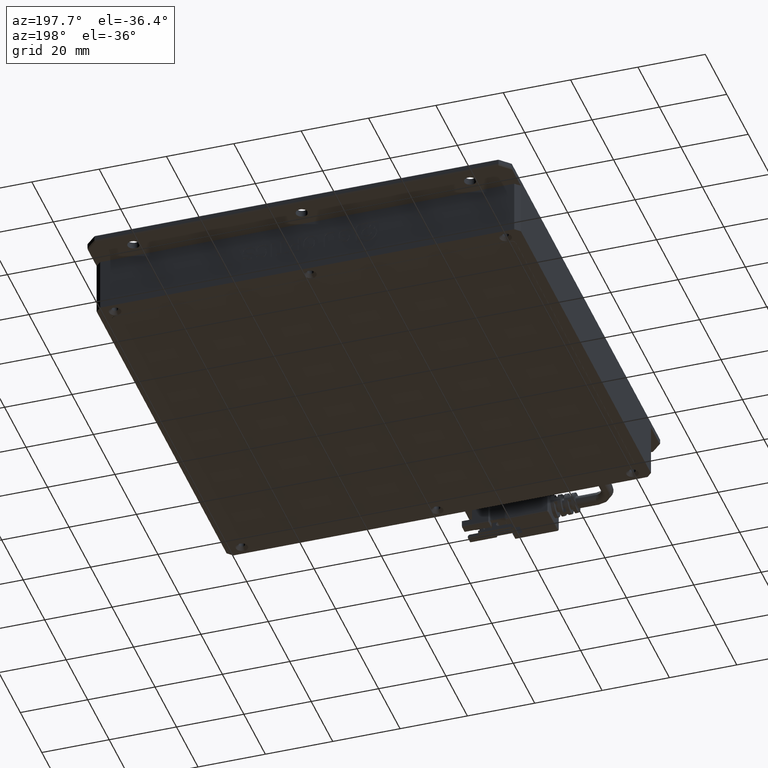
[diagram: clean part render]
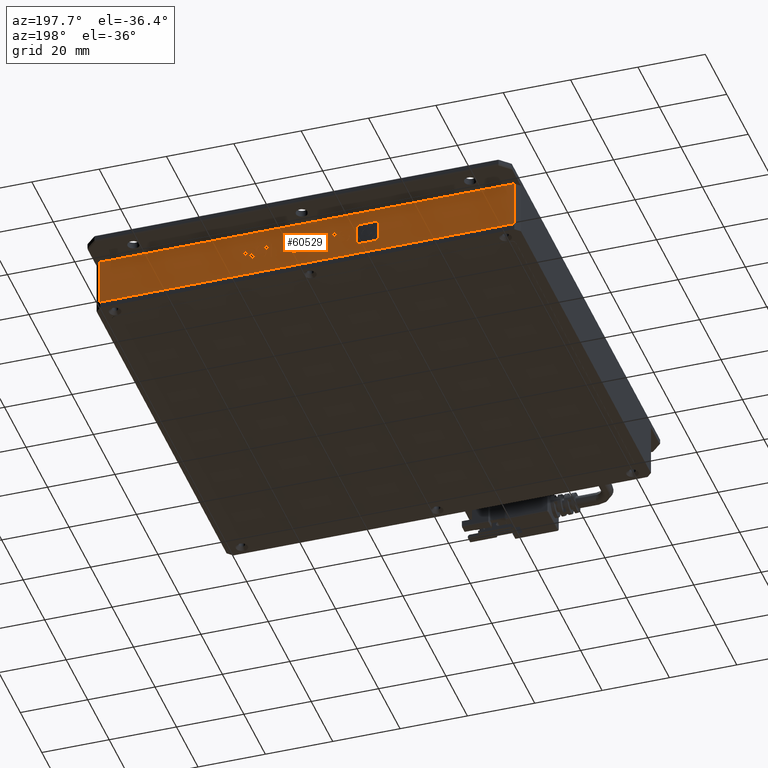
[diagram: same view with one face highlighted and labeled with its STEP entity id]
A machine part, auxiliary view. The second image highlights one B-rep face of the part: STEP entity #60529.
In plain terms, the highlighted planar face has unit normal (0, -1, 0).
Its self-contained STEP definition (entity closure, byte-faithful):
#88 = CARTESIAN_POINT ( 'NONE',  ( 18.69309010691133500, 72.88965253913710300, 7.000338398248152000 ) ) ;
#122 = CARTESIAN_POINT ( 'NONE',  ( 17.73626209176826100, 72.88965253913710300, 7.412067711390385200 ) ) ;
#165 = B_SPLINE_CURVE_WITH_KNOTS ( 'NONE', 3,
 ( #31137, #88, #62543, #15752 ),
 .UNSPECIFIED., .F., .F.,
 ( 4, 4 ),
 ( 11.00000000000000000, 12.00000000000000000 ),
 .UNSPECIFIED. ) ;
#205 = VECTOR ( 'NONE', #36909, 1000.000000000000000 ) ;
#334 = VERTEX_POINT ( 'NONE', #41814 ) ;
#351 = VERTEX_POINT ( 'NONE', #82115 ) ;
#378 = LINE ( 'NONE', #53893, #2815 ) ;
#618 = VERTEX_POINT ( 'NONE', #94172 ) ;
#738 = ORIENTED_EDGE ( 'NONE', *, *, #75271, .F. ) ;
#841 = CARTESIAN_POINT ( 'NONE',  ( -14.89432935719636800, 72.88965253913710300, 4.497999126214069500 ) ) ;
#1033 = DIRECTION ( 'NONE',  ( -0.0000000000000000000, -0.0000000000000000000, -1.000000000000000000 ) ) ;
#1045 = ORIENTED_EDGE ( 'NONE', *, *, #94362, .F. ) ;
#1071 = B_SPLINE_CURVE_WITH_KNOTS ( 'NONE', 3,
 ( #98365, #20088, #43610, #51467 ),
 .UNSPECIFIED., .F., .F.,
 ( 4, 4 ),
 ( 2.000000000000000000, 3.000000000000000000 ),
 .UNSPECIFIED. ) ;
#1423 = LINE ( 'NONE', #55606, #82008 ) ;
#1513 = B_SPLINE_CURVE_WITH_KNOTS ( 'NONE', 3,
 ( #14129, #99926, #29820, #84471 ),
 .UNSPECIFIED., .F., .F.,
 ( 4, 4 ),
 ( 1.000000000000000000, 2.000000000000000000 ),
 .UNSPECIFIED. ) ;
#1555 = CARTESIAN_POINT ( 'NONE',  ( -63.35509736540663500, 72.88965253913710300, 13.99999999998362900 ) ) ;
#1567 = CARTESIAN_POINT ( 'NONE',  ( 61.14490263459333600, 72.88965253913711700, 13.99999999998362900 ) ) ;
#1892 = DIRECTION ( 'NONE',  ( -0.0000000000000000000, -0.0000000000000000000, -1.000000000000000000 ) ) ;
#2307 = CARTESIAN_POINT ( 'NONE',  ( -11.72790772975695900, 72.88965253913710300, 5.032896537783021700 ) ) ;
#2652 = CARTESIAN_POINT ( 'NONE',  ( -13.06878117486243200, 72.88965253913710300, 4.474959815230272800 ) ) ;
#2711 = VECTOR ( 'NONE', #98153, 1000.000000000000000 ) ;
#2744 = CARTESIAN_POINT ( 'NONE',  ( 61.14490263459336500, 72.88965253913710300, 13.99999999998362900 ) ) ;
#2784 = DIRECTION ( 'NONE',  ( -0.0000000000000000000, -0.0000000000000000000, -1.000000000000000000 ) ) ;
#2815 = VECTOR ( 'NONE', #84644, 1000.000000000000000 ) ;
#2916 = EDGE_CURVE ( 'NONE', #80700, #34252, #79996, .T. ) ;
#3107 = CARTESIAN_POINT ( 'NONE',  ( 5.122754790524375300, 72.88965253913710300, 4.467780258713249400 ) ) ;
#3230 = DIRECTION ( 'NONE',  ( -1.000000000000000000, -0.0000000000000000000, -0.0000000000000000000 ) ) ;
#3281 = VECTOR ( 'NONE', #67214, 1000.000000000000000 ) ;
#3366 = CARTESIAN_POINT ( 'NONE',  ( 9.379258305938108700, 72.88965253913710300, 8.967780258713254700 ) ) ;
#3477 = CARTESIAN_POINT ( 'NONE',  ( -8.623297129432216900, 72.88965253913710300, 9.093361654062077200 ) ) ;
#3552 = CARTESIAN_POINT ( 'NONE',  ( 2.252392432492866800, 72.88965253913710300, 7.398012816852817000 ) ) ;
#3680 = DIRECTION ( 'NONE',  ( 1.000000000000000000, -0.0000000000000000000, -0.0000000000000000000 ) ) ;
#3765 = CARTESIAN_POINT ( 'NONE',  ( -20.38187477048314400, 72.88965253913710300, 9.985605835279159200 ) ) ;
#3778 = VERTEX_POINT ( 'NONE', #30247 ) ;
#3806 = LINE ( 'NONE', #64475, #24536 ) ;
#3976 = LINE ( 'NONE', #62403, #22293 ) ;
#4154 = VERTEX_POINT ( 'NONE', #30163 ) ;
#4227 = CARTESIAN_POINT ( 'NONE',  ( -15.31036921447137500, 72.88965253913710300, 3.274440234756731600 ) ) ;
#4358 = CARTESIAN_POINT ( 'NONE',  ( -6.358329579405519500, 72.88965253913710300, 4.467780258713249400 ) ) ;
#4624 = ORIENTED_EDGE ( 'NONE', *, *, #5790, .F. ) ;
#4835 = VECTOR ( 'NONE', #76499, 1000.000000000000000 ) ;
#4905 = EDGE_CURVE ( 'NONE', #14381, #31357, #45517, .T. ) ;
#5091 = B_SPLINE_CURVE_WITH_KNOTS ( 'NONE', 3,
 ( #69017, #22272, #76885, #30073 ),
 .UNSPECIFIED., .F., .F.,
 ( 4, 4 ),
 ( 9.000000000000000000, 10.00000000000000000 ),
 .UNSPECIFIED. ) ;
#5167 = LINE ( 'NONE', #43393, #2711 ) ;
#5179 = CARTESIAN_POINT ( 'NONE',  ( -7.315157594548704600, 72.88965253913710300, 8.444524444759792900 ) ) ;
#5235 = CARTESIAN_POINT ( 'NONE',  ( 15.27610795439660100, 72.88965253913710300, 5.639873281969077100 ) ) ;
#5319 = VERTEX_POINT ( 'NONE', #84035 ) ;
#5575 = EDGE_CURVE ( 'NONE', #22379, #351, #3806, .T. ) ;
#5634 = CARTESIAN_POINT ( 'NONE',  ( -9.209100266263314800, 72.88965253913710300, 4.467780258713249400 ) ) ;
#5789 = CARTESIAN_POINT ( 'NONE',  ( -7.315157594548704600, 72.88965253913710300, 8.444524444759792900 ) ) ;
#5790 = EDGE_CURVE ( 'NONE', #36419, #88972, #1071, .T. ) ;
#5878 = CARTESIAN_POINT ( 'NONE',  ( -10.69307809211494800, 72.88965253913710300, 7.753826770341143900 ) ) ;
#6089 = VERTEX_POINT ( 'NONE', #8433 ) ;
#6191 = CARTESIAN_POINT ( 'NONE',  ( -63.35509736540663500, 72.88965253913710300, 13.99999999998362900 ) ) ;
#6223 = CARTESIAN_POINT ( 'NONE',  ( -8.271863922293398700, 72.88965253913710300, 8.060904920692696200 ) ) ;
#6316 = CARTESIAN_POINT ( 'NONE',  ( 16.83808740274717100, 72.88965253913710300, 8.465454677317934400 ) ) ;
#6676 = CARTESIAN_POINT ( 'NONE',  ( 10.84376614801452200, 72.88965253913710300, 6.728245374992337000 ) ) ;
#6824 = EDGE_LOOP ( 'NONE', ( #97718, #83622, #64868, #738, #44778, #51194, #72088, #65663, #90976, #67000 ) ) ;
#6884 = ORIENTED_EDGE ( 'NONE', *, *, #44399, .T. ) ;
#7010 = CARTESIAN_POINT ( 'NONE',  ( 4.673606602314528400, 72.88965253913710300, 5.932896537783033600 ) ) ;
#7134 = CARTESIAN_POINT ( 'NONE',  ( -13.04918950368905200, 72.88965253913710300, 8.995585829291940200 ) ) ;
#7187 = VECTOR ( 'NONE', #67061, 1000.000000000000000 ) ;
#7398 = ORIENTED_EDGE ( 'NONE', *, *, #75901, .F. ) ;
#7415 = VECTOR ( 'NONE', #41956, 1000.000000000000000 ) ;
#7554 = B_SPLINE_CURVE_WITH_KNOTS ( 'NONE', 3,
 ( #59774, #12971, #20860, #75493 ),
 .UNSPECIFIED., .F., .F.,
 ( 4, 4 ),
 ( 13.00000000000000000, 14.00000000000000000 ),
 .UNSPECIFIED. ) ;
#7590 = CARTESIAN_POINT ( 'NONE',  ( 12.89395543952376300, 72.88965253913710300, 9.051501188945820800 ) ) ;
#7791 = ORIENTED_EDGE ( 'NONE', *, *, #40361, .F. ) ;
#7812 = CARTESIAN_POINT ( 'NONE',  ( -7.334627578323704700, 72.88965253913710300, 9.051501188945820800 ) ) ;
#7822 = ORIENTED_EDGE ( 'NONE', *, *, #66887, .F. ) ;
#8146 = VECTOR ( 'NONE', #2784, 1000.000000000000000 ) ;
#8433 = CARTESIAN_POINT ( 'NONE',  ( -8.271863922293398700, 72.88965253913710300, 7.293361654062080000 ) ) ;
#8456 = CARTESIAN_POINT ( 'NONE',  ( 11.57900141031864600, 72.88965253913710300, 4.488710491271419300 ) ) ;
#8677 = LINE ( 'NONE', #51032, #26969 ) ;
#8889 = B_SPLINE_CURVE_WITH_KNOTS ( 'NONE', 3,
 ( #30322, #84628, #7134, #61748 ),
 .UNSPECIFIED., .F., .F.,
 ( 4, 4 ),
 ( 11.00000000000000000, 12.00000000000000000 ),
 .UNSPECIFIED. ) ;
#9024 = CARTESIAN_POINT ( 'NONE',  ( 18.13320638598137100, 72.88965253913710300, 9.051501188945820800 ) ) ;
#9316 = VERTEX_POINT ( 'NONE', #48846 ) ;
#9324 = B_SPLINE_CURVE_WITH_KNOTS ( 'NONE', 3,
 ( #89913, #35218, #4227, #58813 ),
 .UNSPECIFIED., .F., .F.,
 ( 4, 4 ),
 ( 3.000000000000000000, 4.000000000000000000 ),
 .UNSPECIFIED. ) ;
#9355 = DIRECTION ( 'NONE',  ( 0.0000000000000000000, -0.0000000000000000000, -1.000000000000000000 ) ) ;
#9559 = DIRECTION ( 'NONE',  ( 1.000000000000000000, -0.0000000000000000000, 0.0000000000000000000 ) ) ;
#9565 = EDGE_CURVE ( 'NONE', #54380, #26229, #56406, .T. ) ;
#9631 = CARTESIAN_POINT ( 'NONE',  ( 17.73626209176826100, 72.88965253913710300, 7.774757002899285400 ) ) ;
#9658 = CARTESIAN_POINT ( 'NONE',  ( 12.85489378457505100, 72.88965253913710300, 4.404989561038852300 ) ) ;
#9693 = VERTEX_POINT ( 'NONE', #14299 ) ;
#9755 = VECTOR ( 'NONE', #17837, 1000.000000000000000 ) ;
#9891 = CARTESIAN_POINT ( 'NONE',  ( -12.84086067729650600, 72.88965253913710300, 7.802866791974505400 ) ) ;
#10016 = B_SPLINE_CURVE_WITH_KNOTS ( 'NONE', 3,
 ( #89453, #34773, #50506, #3765 ),
 .UNSPECIFIED., .F., .F.,
 ( 4, 4 ),
 ( 7.000000000000000000, 8.000000000000000000 ),
 .UNSPECIFIED. ) ;
#10076 = CARTESIAN_POINT ( 'NONE',  ( -9.209100266263314800, 72.88965253913710300, 7.063129095922521500 ) ) ;
#10490 = CARTESIAN_POINT ( 'NONE',  ( -9.814373386869190700, 72.88965253913710300, 8.046850026155100400 ) ) ;
#10524 = CARTESIAN_POINT ( 'NONE',  ( -9.814373386869190700, 72.88965253913710300, 6.372431421503926600 ) ) ;
#10811 = ORIENTED_EDGE ( 'NONE', *, *, #72609, .F. ) ;
#10848 = CARTESIAN_POINT ( 'NONE',  ( 11.82651357905850600, 72.88965253913710300, 7.830672362553165100 ) ) ;
#11223 = VERTEX_POINT ( 'NONE', #18742 ) ;
#11224 = CARTESIAN_POINT ( 'NONE',  ( -6.358329579405519500, 72.88965253913710300, 7.293361654062080000 ) ) ;
#11255 = CARTESIAN_POINT ( 'NONE',  ( -7.334627578323704700, 72.88965253913710300, 9.051501188945820800 ) ) ;
#11334 = DIRECTION ( 'NONE',  ( -0.0000000000000000000, -0.0000000000000000000, -1.000000000000000000 ) ) ;
#11375 = CARTESIAN_POINT ( 'NONE',  ( 15.17839297332601600, 72.88965253913710300, 7.418943049410931000 ) ) ;
#11726 = CARTESIAN_POINT ( 'NONE',  ( 7.446253979274786200, 72.88965253913710300, 8.967780258713254700 ) ) ;
#11999 = ORIENTED_EDGE ( 'NONE', *, *, #90998, .F. ) ;
#12097 = DIRECTION ( 'NONE',  ( -0.0000000000000000000, -0.0000000000000000000, 1.000000000000000000 ) ) ;
#12122 = CARTESIAN_POINT ( 'NONE',  ( 16.97474235136797900, 72.88965253913710300, 6.288710491271415600 ) ) ;
#12188 = ORIENTED_EDGE ( 'NONE', *, *, #95629, .F. ) ;
#12223 = VERTEX_POINT ( 'NONE', #24603 ) ;
#12294 = EDGE_CURVE ( 'NONE', #13003, #81382, #57737, .T. ) ;
#12296 = VERTEX_POINT ( 'NONE', #11224 ) ;
#12344 = CARTESIAN_POINT ( 'NONE',  ( 16.85767907392055100, 72.88965253913710300, 4.404989561038852300 ) ) ;
#12686 = CARTESIAN_POINT ( 'NONE',  ( 15.84231942005387400, 72.88965253913710300, 4.419044455576449000 ) ) ;
#12801 = CARTESIAN_POINT ( 'NONE',  ( 16.85767907392055100, 72.88965253913710300, 4.404989561038852300 ) ) ;
#12971 = CARTESIAN_POINT ( 'NONE',  ( 15.62084835461297100, 72.88965253913710300, 8.814089074289267200 ) ) ;
#13003 = VERTEX_POINT ( 'NONE', #12122 ) ;
#13020 = CARTESIAN_POINT ( 'NONE',  ( -1.340306323591500300, 72.88965253913710300, 4.404989561038852300 ) ) ;
#13273 = CARTESIAN_POINT ( 'NONE',  ( -15.31036921447137500, 72.88965253913710300, 9.985605835279159200 ) ) ;
#13485 = CARTESIAN_POINT ( 'NONE',  ( 15.17839297332601600, 72.88965253913710300, 8.214291886620234400 ) ) ;
#13780 = CARTESIAN_POINT ( 'NONE',  ( 17.72311985272023800, 72.88965253913710300, 8.235222119178375900 ) ) ;
#14129 = CARTESIAN_POINT ( 'NONE',  ( -20.38187477048314400, 72.88965253913710300, 3.274440234756731600 ) ) ;
#14299 = CARTESIAN_POINT ( 'NONE',  ( -1.340306323591500300, 72.88965253913710300, 9.051501188945820800 ) ) ;
#14359 = CARTESIAN_POINT ( 'NONE',  ( 1.334747759696774900, 72.88965253913710300, 4.467780258713249400 ) ) ;
#14381 = VERTEX_POINT ( 'NONE', #14359 ) ;
#14486 = CARTESIAN_POINT ( 'NONE',  ( 10.90874721886403400, 72.88965253913710300, 8.207416548599688600 ) ) ;
#14694 = B_SPLINE_CURVE_WITH_KNOTS ( 'NONE', 3,
 ( #72601, #17984, #57217, #10490 ),
 .UNSPECIFIED., .F., .F.,
 ( 4, 4 ),
 ( 10.00000000000000000, 11.00000000000000000 ),
 .UNSPECIFIED. ) ;
#14798 = EDGE_CURVE ( 'NONE', #12296, #88087, #58428, .T. ) ;
#15229 = ORIENTED_EDGE ( 'NONE', *, *, #55710, .F. ) ;
#15232 = CARTESIAN_POINT ( 'NONE',  ( -1.340306323591500300, 72.88965253913710300, 4.404989561038852300 ) ) ;
#15371 = VERTEX_POINT ( 'NONE', #12801 ) ;
#15480 = CARTESIAN_POINT ( 'NONE',  ( 3.150567121513958600, 72.88965253913710300, 7.398012816852817000 ) ) ;
#15595 = CARTESIAN_POINT ( 'NONE',  ( -14.89432935719636800, 72.88965253913710300, 8.762034712391203700 ) ) ;
#15649 = CARTESIAN_POINT ( 'NONE',  ( 4.673606602314528400, 72.88965253913710300, 5.932896537783033600 ) ) ;
#15656 = DIRECTION ( 'NONE',  ( -1.000000000000000000, -0.0000000000000000000, -0.0000000000000000000 ) ) ;
#15752 = CARTESIAN_POINT ( 'NONE',  ( 16.97474235136797900, 72.88965253913710300, 6.288710491271415600 ) ) ;
#16006 = EDGE_CURVE ( 'NONE', #76815, #62127, #90107, .T. ) ;
#16026 = ORIENTED_EDGE ( 'NONE', *, *, #42443, .F. ) ;
#16340 = EDGE_CURVE ( 'NONE', #74569, #69596, #17002, .T. ) ;
#16346 = CARTESIAN_POINT ( 'NONE',  ( 13.66825235677615600, 72.88965253913710300, 8.472634233834957800 ) ) ;
#16350 = CARTESIAN_POINT ( 'NONE',  ( 0.7489446228661211800, 72.88965253913710300, 6.749175607550478500 ) ) ;
#16486 = B_SPLINE_CURVE_WITH_KNOTS ( 'NONE', 3,
 ( #99841, #44758, #6223, #60845 ),
 .UNSPECIFIED., .F., .F.,
 ( 4, 4 ),
 ( 3.000000000000000000, 4.000000000000000000 ),
 .UNSPECIFIED. ) ;
#16589 = CARTESIAN_POINT ( 'NONE',  ( 16.87714905769577500, 72.88965253913710300, 5.053826770341163200 ) ) ;
#16661 = CARTESIAN_POINT ( 'NONE',  ( 12.91342542329854100, 72.88965253913710300, 5.053826770341163200 ) ) ;
#16784 = CARTESIAN_POINT ( 'NONE',  ( 11.80047247575966000, 72.88965253913710300, 6.770105840108620000 ) ) ;
#16876 = CARTESIAN_POINT ( 'NONE',  ( -10.83642584765831500, 72.88965253913710300, 8.228346781157803500 ) ) ;
#16901 = CARTESIAN_POINT ( 'NONE',  ( -3.429557270048899700, 72.88965253913710300, 6.749175607550478500 ) ) ;
#17002 = LINE ( 'NONE', #62789, #56074 ) ;
#17135 = CARTESIAN_POINT ( 'NONE',  ( 11.81337134001059200, 72.88965253913710300, 5.653928176506672900 ) ) ;
#17175 = B_SPLINE_CURVE_WITH_KNOTS ( 'NONE', 3,
 ( #17576, #64037, #25431, #80075 ),
 .UNSPECIFIED., .F., .F.,
 ( 4, 4 ),
 ( 2.000000000000000000, 3.000000000000000000 ),
 .UNSPECIFIED. ) ;
#17249 = CARTESIAN_POINT ( 'NONE',  ( 12.18427453092441000, 72.88965253913710300, 5.081936559416355700 ) ) ;
#17339 = ORIENTED_EDGE ( 'NONE', *, *, #62567, .F. ) ;
#17478 = CARTESIAN_POINT ( 'NONE',  ( -9.814373386869190700, 72.88965253913710300, 8.046850026155100400 ) ) ;
#17497 = EDGE_CURVE ( 'NONE', #74843, #334, #44296, .T. ) ;
#17576 = CARTESIAN_POINT ( 'NONE',  ( -12.87992233224510800, 72.88965253913710300, 6.728245374992337000 ) ) ;
#17726 = FACE_BOUND ( 'NONE', #40983, .T. ) ;
#17739 = CARTESIAN_POINT ( 'NONE',  ( 6.509017635305314200, 72.88965253913710300, 5.095687235457447200 ) ) ;
#17837 = DIRECTION ( 'NONE',  ( -0.0000000000000000000, -0.0000000000000000000, 1.000000000000000000 ) ) ;
#17984 = CARTESIAN_POINT ( 'NONE',  ( -10.69307809211494800, 72.88965253913710300, 9.051501188945820800 ) ) ;
#18340 = EDGE_LOOP ( 'NONE', ( #61914, #16026, #49402, #95134, #37058, #1045, #55558, #39792, #11999, #73382, #42341, #7791, #46142, #43457 ) ) ;
#18729 = VECTOR ( 'NONE', #81861, 1000.000000000000000 ) ;
#18742 = CARTESIAN_POINT ( 'NONE',  ( -11.72790772975695900, 72.88965253913710300, 4.404989561038852300 ) ) ;
#19100 = CARTESIAN_POINT ( 'NONE',  ( 1.334747759696774900, 72.88965253913710300, 8.967780258713254700 ) ) ;
#19458 = CARTESIAN_POINT ( 'NONE',  ( -3.364576199199831300, 72.88965253913710300, 8.200541210579114400 ) ) ;
#19504 = VERTEX_POINT ( 'NONE', #71742 ) ;
#19624 = EDGE_CURVE ( 'NONE', #23223, #84551, #70459, .T. ) ;
#19803 = ORIENTED_EDGE ( 'NONE', *, *, #71065, .F. ) ;
#20045 = EDGE_CURVE ( 'NONE', #28908, #77788, #47230, .T. ) ;
#20088 = CARTESIAN_POINT ( 'NONE',  ( -2.668037529648836800, 72.88965253913710300, 4.460904920692704500 ) ) ;
#20157 = CARTESIAN_POINT ( 'NONE',  ( -11.72790772975695900, 72.88965253913710300, 5.032896537783021700 ) ) ;
#20192 = CARTESIAN_POINT ( 'NONE',  ( -9.209100266263314800, 72.88965253913710300, 4.467780258713249400 ) ) ;
#20207 = FACE_BOUND ( 'NONE', #51919, .T. ) ;
#20214 = CARTESIAN_POINT ( 'NONE',  ( -11.94268598827474800, 72.88965253913710300, 7.000338398248152000 ) ) ;
#20253 = ORIENTED_EDGE ( 'NONE', *, *, #43064, .F. ) ;
#20305 = DIRECTION ( 'NONE',  ( -0.0000000000000000000, -0.0000000000000000000, -1.000000000000000000 ) ) ;
#20473 = CARTESIAN_POINT ( 'NONE',  ( 7.446253979274786200, 72.88965253913710300, 5.095687235457447200 ) ) ;
#20501 = CARTESIAN_POINT ( 'NONE',  ( 10.29702466613258200, 72.88965253913710300, 4.467780258713249400 ) ) ;
#20816 = CARTESIAN_POINT ( 'NONE',  ( 17.26764391978308300, 72.88965253913710300, 5.067881664878759900 ) ) ;
#20860 = CARTESIAN_POINT ( 'NONE',  ( 16.21967204309315800, 72.88965253913710300, 9.093361654062077200 ) ) ;
#20971 = ORIENTED_EDGE ( 'NONE', *, *, #57402, .F. ) ;
#21158 = CARTESIAN_POINT ( 'NONE',  ( -14.89432935719636800, 72.88965253913710300, 8.762034712391203700 ) ) ;
#21593 = LINE ( 'NONE', #3552, #42284 ) ;
#21784 = ORIENTED_EDGE ( 'NONE', *, *, #42208, .F. ) ;
#21895 = VECTOR ( 'NONE', #59383, 1000.000000000000000 ) ;
#22272 = CARTESIAN_POINT ( 'NONE',  ( 16.21967204309315800, 72.88965253913710300, 5.249378419881489700 ) ) ;
#22293 = VECTOR ( 'NONE', #70260, 1000.000000000000000 ) ;
#22326 = CARTESIAN_POINT ( 'NONE',  ( -12.87992233224510800, 72.88965253913710300, 6.728245374992337000 ) ) ;
#22376 = CARTESIAN_POINT ( 'NONE',  ( 11.59214364936689300, 72.88965253913710300, 8.981530934754344400 ) ) ;
#22379 = VERTEX_POINT ( 'NONE', #36046 ) ;
#22688 = EDGE_CURVE ( 'NONE', #59698, #79181, #59340, .T. ) ;
#22824 = EDGE_CURVE ( 'NONE', #77788, #14381, #33695, .T. ) ;
#22985 = VERTEX_POINT ( 'NONE', #22326 ) ;
#22989 = ORIENTED_EDGE ( 'NONE', *, *, #31543, .F. ) ;
#23048 = EDGE_CURVE ( 'NONE', #26229, #83577, #67870, .T. ) ;
#23223 = VERTEX_POINT ( 'NONE', #48540 ) ;
#23246 = B_SPLINE_CURVE_WITH_KNOTS ( 'NONE', 3,
 ( #57219, #2652, #72931, #26166 ),
 .UNSPECIFIED., .F., .F.,
 ( 4, 4 ),
 ( 12.00000000000000000, 13.00000000000000000 ),
 .UNSPECIFIED. ) ;
#23287 = CARTESIAN_POINT ( 'NONE',  ( 14.61218150766885400, 72.88965253913710300, 8.298012816852800500 ) ) ;
#23356 = EDGE_CURVE ( 'NONE', #64248, #15371, #44945, .T. ) ;
#23519 = CARTESIAN_POINT ( 'NONE',  ( -5.356112164586424000, 72.88965253913710300, 8.444524444759792900 ) ) ;
#23646 = VECTOR ( 'NONE', #25245, 1000.000000000000000 ) ;
#23800 = EDGE_CURVE ( 'NONE', #95129, #36902, #37074, .T. ) ;
#24026 = VERTEX_POINT ( 'NONE', #20501 ) ;
#24115 = VERTEX_POINT ( 'NONE', #52891 ) ;
#24374 = B_SPLINE_CURVE_WITH_KNOTS ( 'NONE', 3,
 ( #47428, #94293, #63166, #16350 ),
 .UNSPECIFIED., .F., .F.,
 ( 4, 4 ),
 ( 0.0000000000000000000, 1.000000000000000000 ),
 .UNSPECIFIED. ) ;
#24497 = VERTEX_POINT ( 'NONE', #3366 ) ;
#24536 = VECTOR ( 'NONE', #25552, 1000.000000000000000 ) ;
#24603 = CARTESIAN_POINT ( 'NONE',  ( -61.85509736540666400, 72.88965253913710300, -1.637058544279312900E-011 ) ) ;
#24719 = CARTESIAN_POINT ( 'NONE',  ( -11.15524683197433100, 72.88965253913710300, 8.458579339297333600 ) ) ;
#24765 = ORIENTED_EDGE ( 'NONE', *, *, #23356, .F. ) ;
#25011 = B_SPLINE_CURVE_WITH_KNOTS ( 'NONE', 3,
 ( #12344, #12686, #51981, #5235 ),
 .UNSPECIFIED., .F., .F.,
 ( 4, 4 ),
 ( 5.000000000000000000, 6.000000000000000000 ),
 .UNSPECIFIED. ) ;
#25245 = DIRECTION ( 'NONE',  ( -0.0000000000000000000, -0.0000000000000000000, -1.000000000000000000 ) ) ;
#25406 = LINE ( 'NONE', #80848, #85291 ) ;
#25431 = CARTESIAN_POINT ( 'NONE',  ( -12.45705862213109000, 72.88965253913710300, 5.102866791974469700 ) ) ;
#25552 = DIRECTION ( 'NONE',  ( -1.000000000000000000, -0.0000000000000000000, -0.0000000000000000000 ) ) ;
#25838 = CARTESIAN_POINT ( 'NONE',  ( -10.75160973083888500, 72.88965253913710300, 4.404989561038852300 ) ) ;
#26166 = CARTESIAN_POINT ( 'NONE',  ( -13.81715867621458000, 72.88965253913710300, 6.707315142434194600 ) ) ;
#26229 = VERTEX_POINT ( 'NONE', #36400 ) ;
#26335 = VECTOR ( 'NONE', #68245, 1000.000000000000000 ) ;
#26348 = B_SPLINE_CURVE_WITH_KNOTS ( 'NONE', 3,
 ( #50326, #97189, #58146, #11375 ),
 .UNSPECIFIED., .F., .F.,
 ( 4, 4 ),
 ( 1.000000000000000000, 2.000000000000000000 ),
 .UNSPECIFIED. ) ;
#26383 = CARTESIAN_POINT ( 'NONE',  ( 1.334747759696774900, 72.88965253913710300, 4.467780258713249400 ) ) ;
#26599 = DIRECTION ( 'NONE',  ( -0.0000000000000000000, -0.0000000000000000000, 1.000000000000000000 ) ) ;
#26647 = CARTESIAN_POINT ( 'NONE',  ( 18.41965852227134100, 72.88965253913710300, 4.900439804413625900 ) ) ;
#26969 = VECTOR ( 'NONE', #12097, 1000.000000000000000 ) ;
#26987 = CARTESIAN_POINT ( 'NONE',  ( 17.84675424969151100, 72.88965253913710300, 4.433099350114017200 ) ) ;
#27108 = DIRECTION ( 'NONE',  ( -0.0000000000000000000, -0.0000000000000000000, 1.000000000000000000 ) ) ;
#27236 = CARTESIAN_POINT ( 'NONE',  ( 6.509017635305314200, 72.88965253913710300, 8.967780258713254700 ) ) ;
#27239 = CARTESIAN_POINT ( 'NONE',  ( -11.94268598827474800, 72.88965253913710300, 7.000338398248152000 ) ) ;
#27345 = VERTEX_POINT ( 'NONE', #841 ) ;
#27614 = VERTEX_POINT ( 'NONE', #76563 ) ;
#27751 = ORIENTED_EDGE ( 'NONE', *, *, #4905, .F. ) ;
#27995 = CARTESIAN_POINT ( 'NONE',  ( -11.25928955777222400, 72.88965253913710300, 5.032896537783021700 ) ) ;
#27997 = EDGE_CURVE ( 'NONE', #42096, #76452, #90513, .T. ) ;
#28304 = CARTESIAN_POINT ( 'NONE',  ( -10.69307809211494800, 72.88965253913710300, 7.000338398248152000 ) ) ;
#28908 = VERTEX_POINT ( 'NONE', #7010 ) ;
#29041 = CARTESIAN_POINT ( 'NONE',  ( 13.66180292465069000, 72.88965253913710300, 5.333099350114029100 ) ) ;
#29183 = VECTOR ( 'NONE', #9559, 1000.000000000000000 ) ;
#29334 = CARTESIAN_POINT ( 'NONE',  ( 8.832516824055947100, 72.88965253913710300, 4.467780258713249400 ) ) ;
#29403 = VERTEX_POINT ( 'NONE', #48789 ) ;
#29820 = CARTESIAN_POINT ( 'NONE',  ( -21.60549478818052200, 72.88965253913710300, 3.935157632828784300 ) ) ;
#30026 = ORIENTED_EDGE ( 'NONE', *, *, #72673, .F. ) ;
#30073 = CARTESIAN_POINT ( 'NONE',  ( 16.87714905769577500, 72.88965253913710300, 5.053826770341163200 ) ) ;
#30163 = CARTESIAN_POINT ( 'NONE',  ( 16.83808740274717100, 72.88965253913710300, 8.465454677317934400 ) ) ;
#30247 = CARTESIAN_POINT ( 'NONE',  ( -11.66925440363486600, 72.88965253913710300, 9.051501188945820800 ) ) ;
#30289 = VERTEX_POINT ( 'NONE', #84136 ) ;
#30322 = CARTESIAN_POINT ( 'NONE',  ( -13.81715867621458000, 72.88965253913710300, 6.707315142434194600 ) ) ;
#30426 = LINE ( 'NONE', #90965, #71973 ) ;
#30953 = VECTOR ( 'NONE', #95022, 1000.000000000000000 ) ;
#31123 = ORIENTED_EDGE ( 'NONE', *, *, #42631, .F. ) ;
#31137 = CARTESIAN_POINT ( 'NONE',  ( 18.69309010691133500, 72.88965253913710300, 7.711966305224887500 ) ) ;
#31167 = CARTESIAN_POINT ( 'NONE',  ( 17.46940162665222500, 72.88965253913710300, 7.181835153250854200 ) ) ;
#31320 = EDGE_LOOP ( 'NONE', ( #22989, #55148, #21784, #7398, #53381, #32206, #64542, #48464, #82093, #99949 ) ) ;
#31357 = VERTEX_POINT ( 'NONE', #91490 ) ;
#31543 = EDGE_CURVE ( 'NONE', #79270, #53984, #40467, .T. ) ;
#31659 = VERTEX_POINT ( 'NONE', #48684 ) ;
#31681 = CARTESIAN_POINT ( 'NONE',  ( 4.686383779166525300, 72.88965253913710300, 4.956355164067504800 ) ) ;
#32054 = VECTOR ( 'NONE', #20305, 1000.000000000000000 ) ;
#32170 = EDGE_CURVE ( 'NONE', #100737, #72961, #51275, .T. ) ;
#32206 = ORIENTED_EDGE ( 'NONE', *, *, #91330, .F. ) ;
#32566 = CARTESIAN_POINT ( 'NONE',  ( 18.70586728376388700, 72.88965253913710300, 8.604786748707848400 ) ) ;
#32748 = ORIENTED_EDGE ( 'NONE', *, *, #27997, .F. ) ;
#32868 = CARTESIAN_POINT ( 'NONE',  ( 14.50144597494840100, 72.88965253913710300, 4.914494698951221700 ) ) ;
#33372 = LINE ( 'NONE', #55667, #30953 ) ;
#33407 = DIRECTION ( 'NONE',  ( 1.000000000000000000, -0.0000000000000000000, -0.0000000000000000000 ) ) ;
#33462 = EDGE_CURVE ( 'NONE', #76452, #83899, #8677, .T. ) ;
#33695 = LINE ( 'NONE', #26383, #96116 ) ;
#33780 = EDGE_CURVE ( 'NONE', #46032, #49531, #48829, .T. ) ;
#34189 = B_SPLINE_CURVE_WITH_KNOTS ( 'NONE', 3,
 ( #60116, #67960, #29041, #83676 ),
 .UNSPECIFIED., .F., .F.,
 ( 4, 4 ),
 ( 1.000000000000000000, 2.000000000000000000 ),
 .UNSPECIFIED. ) ;
#34252 = VERTEX_POINT ( 'NONE', #46079 ) ;
#34428 = CARTESIAN_POINT ( 'NONE',  ( 16.20652980404524600, 72.88965253913710300, 5.988811897436885800 ) ) ;
#34773 = CARTESIAN_POINT ( 'NONE',  ( -21.60549478818052200, 72.88965253913710300, 9.569627124645041500 ) ) ;
#35102 = CARTESIAN_POINT ( 'NONE',  ( -2.668037529648836800, 72.88965253913710300, 8.967780258713254700 ) ) ;
#35218 = CARTESIAN_POINT ( 'NONE',  ( -14.89432935719636800, 72.88965253913710300, 3.690235473937458500 ) ) ;
#35269 = CARTESIAN_POINT ( 'NONE',  ( 4.673606602314528400, 72.88965253913710300, 5.932896537783033600 ) ) ;
#35615 = LINE ( 'NONE', #72346, #53986 ) ;
#35733 = EDGE_CURVE ( 'NONE', #70175, #47032, #87887, .T. ) ;
#35749 = B_SPLINE_CURVE_WITH_KNOTS ( 'NONE', 3,
 ( #60252, #13780, #53075, #6316 ),
 .UNSPECIFIED., .F., .F.,
 ( 4, 4 ),
 ( 2.000000000000000000, 3.000000000000000000 ),
 .UNSPECIFIED. ) ;
#35811 = CARTESIAN_POINT ( 'NONE',  ( 15.18484240545126000, 72.88965253913710300, 6.393361654062096600 ) ) ;
#36044 = FACE_OUTER_BOUND ( 'NONE', #39994, .T. ) ;
#36046 = CARTESIAN_POINT ( 'NONE',  ( -16.11783929202426100, 72.88965253913710300, 3.274440234756731600 ) ) ;
#36119 = CARTESIAN_POINT ( 'NONE',  ( -10.69307809211494800, 72.88965253913710300, 7.753826770341143900 ) ) ;
#36231 = CARTESIAN_POINT ( 'NONE',  ( 0.6576790739210025500, 72.88965253913710300, 5.270308652439603700 ) ) ;
#36400 = CARTESIAN_POINT ( 'NONE',  ( 16.93580238381797900, 72.88965253913710300, 7.084059328480690500 ) ) ;
#36419 = VERTEX_POINT ( 'NONE', #15232 ) ;
#36902 = VERTEX_POINT ( 'NONE', #60551 ) ;
#36909 = DIRECTION ( 'NONE',  ( -0.0000000000000000000, -0.0000000000000000000, 1.000000000000000000 ) ) ;
#37058 = ORIENTED_EDGE ( 'NONE', *, *, #44909, .F. ) ;
#37074 = LINE ( 'NONE', #48410, #97033 ) ;
#37550 = LINE ( 'NONE', #28304, #76664 ) ;
#37680 = EDGE_CURVE ( 'NONE', #53984, #74843, #87867, .T. ) ;
#37905 = VERTEX_POINT ( 'NONE', #72810 ) ;
#38264 = B_SPLINE_CURVE_WITH_KNOTS ( 'NONE', 3,
 ( #7812, #85634, #23519, #78118 ),
 .UNSPECIFIED., .F., .F.,
 ( 4, 4 ),
 ( 8.000000000000000000, 9.000000000000000000 ),
 .UNSPECIFIED. ) ;
#38355 = LINE ( 'NONE', #69208, #77459 ) ;
#38418 = CARTESIAN_POINT ( 'NONE',  ( 9.379258305938108700, 72.88965253913710300, 4.467780258713249400 ) ) ;
#38514 = FACE_BOUND ( 'NONE', #88808, .T. ) ;
#39340 = LINE ( 'NONE', #5634, #80847 ) ;
#39369 = DIRECTION ( 'NONE',  ( 1.000000000000000000, -0.0000000000000000000, -0.0000000000000000000 ) ) ;
#39768 = ORIENTED_EDGE ( 'NONE', *, *, #22824, .F. ) ;
#39792 = ORIENTED_EDGE ( 'NONE', *, *, #94048, .F. ) ;
#39994 = EDGE_LOOP ( 'NONE', ( #57442, #49475, #6884, #76087 ) ) ;
#40025 = LINE ( 'NONE', #95186, #81572 ) ;
#40066 = B_SPLINE_CURVE_WITH_KNOTS ( 'NONE', 3,
 ( #64753, #56890, #25838, #80467 ),
 .UNSPECIFIED., .F., .F.,
 ( 4, 4 ),
 ( 13.00000000000000000, 14.00000000000000000 ),
 .UNSPECIFIED. ) ;
#40361 = EDGE_CURVE ( 'NONE', #97898, #74569, #42597, .T. ) ;
#40467 = B_SPLINE_CURVE_WITH_KNOTS ( 'NONE', 3,
 ( #63074, #8456, #55194, #70918 ),
 .UNSPECIFIED., .F., .F.,
 ( 4, 4 ),
 ( 8.000000000000000000, 9.000000000000000000 ),
 .UNSPECIFIED. ) ;
#40487 = CARTESIAN_POINT ( 'NONE',  ( 3.150567121513958600, 72.88965253913710300, 4.467780258713249400 ) ) ;
#40537 = VERTEX_POINT ( 'NONE', #100755 ) ;
#40684 = CARTESIAN_POINT ( 'NONE',  ( 14.70989648873932700, 72.88965253913710300, 5.891036072666722100 ) ) ;
#40917 = CARTESIAN_POINT ( 'NONE',  ( -11.64978441985975400, 72.88965253913710300, 8.444524444759792900 ) ) ;
#40975 = LINE ( 'NONE', #42541, #59327 ) ;
#40983 = EDGE_LOOP ( 'NONE', ( #81028, #44755, #47342, #12188, #95488, #27751, #39768 ) ) ;
#41814 = CARTESIAN_POINT ( 'NONE',  ( 14.61218150766885400, 72.88965253913710300, 8.298012816852800500 ) ) ;
#41956 = DIRECTION ( 'NONE',  ( -1.000000000000000000, -0.0000000000000000000, -0.0000000000000000000 ) ) ;
#42096 = VERTEX_POINT ( 'NONE', #29334 ) ;
#42208 = EDGE_CURVE ( 'NONE', #40537, #37905, #378, .T. ) ;
#42284 = VECTOR ( 'NONE', #11334, 1000.000000000000000 ) ;
#42291 = CARTESIAN_POINT ( 'NONE',  ( 16.97474235136797900, 72.88965253913710300, 6.288710491271415600 ) ) ;
#42341 = ORIENTED_EDGE ( 'NONE', *, *, #16340, .F. ) ;
#42443 = EDGE_CURVE ( 'NONE', #36902, #11223, #40066, .T. ) ;
#42455 = CARTESIAN_POINT ( 'NONE',  ( -9.209100266263314800, 72.88965253913710300, 7.063129095922521500 ) ) ;
#42541 = CARTESIAN_POINT ( 'NONE',  ( 10.29702466613258200, 72.88965253913710300, 8.967780258713254700 ) ) ;
#42597 = LINE ( 'NONE', #51183, #21895 ) ;
#42631 = EDGE_CURVE ( 'NONE', #9693, #56106, #24374, .T. ) ;
#42634 = DIRECTION ( 'NONE',  ( 1.000000000000000000, -0.0000000000000000000, -0.0000000000000000000 ) ) ;
#43064 = EDGE_CURVE ( 'NONE', #70766, #24026, #3976, .T. ) ;
#43393 = CARTESIAN_POINT ( 'NONE',  ( 15.17839297332601600, 72.88965253913710300, 8.214291886620234400 ) ) ;
#43457 = ORIENTED_EDGE ( 'NONE', *, *, #53302, .F. ) ;
#43610 = CARTESIAN_POINT ( 'NONE',  ( -3.364576199199831300, 72.88965253913710300, 5.242198863364411200 ) ) ;
#43882 = CARTESIAN_POINT ( 'NONE',  ( -10.81014136956237700, 72.88965253913710300, 5.723594212201643200 ) ) ;
#43897 = VERTEX_POINT ( 'NONE', #20214 ) ;
#43999 = CARTESIAN_POINT ( 'NONE',  ( 16.93580238381797900, 72.88965253913710300, 7.084059328480690500 ) ) ;
#44130 = DIRECTION ( 'NONE',  ( -1.000000000000000000, -0.0000000000000000000, -0.0000000000000000000 ) ) ;
#44296 = B_SPLINE_CURVE_WITH_KNOTS ( 'NONE', 3,
 ( #7590, #62210, #70055, #23287 ),
 .UNSPECIFIED., .F., .F.,
 ( 4, 4 ),
 ( 6.000000000000000000, 7.000000000000000000 ),
 .UNSPECIFIED. ) ;
#44399 = EDGE_CURVE ( 'NONE', #12223, #47032, #25406, .T. ) ;
#44755 = ORIENTED_EDGE ( 'NONE', *, *, #83164, .F. ) ;
#44758 = CARTESIAN_POINT ( 'NONE',  ( -7.953042937977605800, 72.88965253913710300, 8.444524444759792900 ) ) ;
#44778 = ORIENTED_EDGE ( 'NONE', *, *, #73002, .F. ) ;
#44909 = EDGE_CURVE ( 'NONE', #22985, #98696, #17175, .T. ) ;
#44945 = B_SPLINE_CURVE_WITH_KNOTS ( 'NONE', 3,
 ( #58027, #26647, #26987, #81630 ),
 .UNSPECIFIED., .F., .F.,
 ( 4, 4 ),
 ( 6.000000000000000000, 7.000000000000000000 ),
 .UNSPECIFIED. ) ;
#45238 = CARTESIAN_POINT ( 'NONE',  ( 18.69309010691133500, 72.88965253913710300, 7.711966305224887500 ) ) ;
#45336 = CARTESIAN_POINT ( 'NONE',  ( 12.85489378457505100, 72.88965253913710300, 4.404989561038852300 ) ) ;
#45443 = VERTEX_POINT ( 'NONE', #47468 ) ;
#45517 = LINE ( 'NONE', #19100, #87102 ) ;
#45598 = CARTESIAN_POINT ( 'NONE',  ( 12.89395543952376300, 72.88965253913710300, 9.051501188945820800 ) ) ;
#45637 = EDGE_CURVE ( 'NONE', #72961, #24115, #10016, .T. ) ;
#45681 = CARTESIAN_POINT ( 'NONE',  ( 16.23281428214140500, 72.88965253913710300, 5.639873281969077100 ) ) ;
#45726 = LINE ( 'NONE', #52215, #26335 ) ;
#45926 = ORIENTED_EDGE ( 'NONE', *, *, #62551, .F. ) ;
#46032 = VERTEX_POINT ( 'NONE', #93881 ) ;
#46079 = CARTESIAN_POINT ( 'NONE',  ( 12.91342542329854100, 72.88965253913710300, 5.053826770341163200 ) ) ;
#46142 = ORIENTED_EDGE ( 'NONE', *, *, #81702, .F. ) ;
#46356 = EDGE_LOOP ( 'NONE', ( #90367, #4624, #80856, #31123 ) ) ;
#46627 = DIRECTION ( 'NONE',  ( 1.000000000000000000, -0.0000000000000000000, -0.0000000000000000000 ) ) ;
#47032 = VERTEX_POINT ( 'NONE', #100885 ) ;
#47230 = B_SPLINE_CURVE_WITH_KNOTS ( 'NONE', 3,
 ( #15649, #31681, #78469, #86331 ),
 .UNSPECIFIED., .F., .F.,
 ( 4, 4 ),
 ( 5.000000000000000000, 6.000000000000000000 ),
 .UNSPECIFIED. ) ;
#47342 = ORIENTED_EDGE ( 'NONE', *, *, #33780, .F. ) ;
#47425 = CARTESIAN_POINT ( 'NONE',  ( 14.61218150766885400, 72.88965253913710300, 7.439873281969072500 ) ) ;
#47428 = CARTESIAN_POINT ( 'NONE',  ( -1.340306323591500300, 72.88965253913710300, 9.051501188945820800 ) ) ;
#47468 = CARTESIAN_POINT ( 'NONE',  ( 13.10873369804199700, 72.88965253913710300, 8.444524444759792900 ) ) ;
#47884 = EDGE_CURVE ( 'NONE', #79846, #5319, #7554, .T. ) ;
#48145 = EDGE_CURVE ( 'NONE', #51945, #42096, #1423, .T. ) ;
#48356 = AXIS2_PLACEMENT_3D ( 'NONE', #1555, #56115, #9355 ) ;
#48410 = CARTESIAN_POINT ( 'NONE',  ( -9.833965058042682700, 72.88965253913710300, 5.723594212201643200 ) ) ;
#48464 = ORIENTED_EDGE ( 'NONE', *, *, #85286, .F. ) ;
#48540 = CARTESIAN_POINT ( 'NONE',  ( -5.421093235435714400, 72.88965253913710300, 7.021268630806265100 ) ) ;
#48684 = CARTESIAN_POINT ( 'NONE',  ( -10.69307809211494800, 72.88965253913710300, 7.000338398248152000 ) ) ;
#48694 = LINE ( 'NONE', #59219, #7187 ) ;
#48789 = CARTESIAN_POINT ( 'NONE',  ( 61.14490263459335000, 72.88965253913710300, -1.637058544279312900E-011 ) ) ;
#48799 = CARTESIAN_POINT ( 'NONE',  ( -12.43077414403526100, 72.88965253913710300, 8.374858409064794200 ) ) ;
#48829 = LINE ( 'NONE', #15480, #69623 ) ;
#48846 = CARTESIAN_POINT ( 'NONE',  ( 7.446253979274786200, 72.88965253913710300, 5.095687235457447200 ) ) ;
#49224 = VECTOR ( 'NONE', #70146, 1000.000000000000000 ) ;
#49402 = ORIENTED_EDGE ( 'NONE', *, *, #23800, .F. ) ;
#49475 = ORIENTED_EDGE ( 'NONE', *, *, #70089, .F. ) ;
#49531 = VERTEX_POINT ( 'NONE', #60131 ) ;
#49560 = CARTESIAN_POINT ( 'NONE',  ( -11.94268598827474800, 72.88965253913710300, 6.372431421503926600 ) ) ;
#49750 = CARTESIAN_POINT ( 'NONE',  ( 12.26239784082172700, 72.88965253913710300, 8.388913303602391700 ) ) ;
#49917 = B_SPLINE_CURVE_WITH_KNOTS ( 'NONE', 3,
 ( #74049, #19458, #35102, #89790 ),
 .UNSPECIFIED., .F., .F.,
 ( 4, 4 ),
 ( 1.000000000000000000, 2.000000000000000000 ),
 .UNSPECIFIED. ) ;
#50169 = CARTESIAN_POINT ( 'NONE',  ( 16.23281428214140500, 72.88965253913710300, 5.639873281969077100 ) ) ;
#50241 = EDGE_CURVE ( 'NONE', #82913, #24497, #38355, .T. ) ;
#50326 = CARTESIAN_POINT ( 'NONE',  ( 16.83808740274717100, 72.88965253913710300, 8.465454677317934400 ) ) ;
#50506 = CARTESIAN_POINT ( 'NONE',  ( -21.18957724520442600, 72.88965253913710300, 9.985605835279159200 ) ) ;
#50659 = CARTESIAN_POINT ( 'NONE',  ( 3.150567121513958600, 72.88965253913710300, 7.398012816852817000 ) ) ;
#50746 = FACE_BOUND ( 'NONE', #31320, .T. ) ;
#50858 = ORIENTED_EDGE ( 'NONE', *, *, #12294, .F. ) ;
#51032 = CARTESIAN_POINT ( 'NONE',  ( 5.122754790524375300, 72.88965253913710300, 5.095687235457447200 ) ) ;
#51173 = CARTESIAN_POINT ( 'NONE',  ( -16.11783929202426100, 72.88965253913710300, 9.985605835279159200 ) ) ;
#51183 = CARTESIAN_POINT ( 'NONE',  ( -9.814373386869190700, 72.88965253913710300, 6.372431421503926600 ) ) ;
#51194 = ORIENTED_EDGE ( 'NONE', *, *, #59170, .F. ) ;
#51275 = LINE ( 'NONE', #87866, #9755 ) ;
#51467 = CARTESIAN_POINT ( 'NONE',  ( -3.429557270048899700, 72.88965253913710300, 6.749175607550478500 ) ) ;
#51530 = CARTESIAN_POINT ( 'NONE',  ( -10.81014136956237700, 72.88965253913710300, 5.723594212201643200 ) ) ;
#51772 = LINE ( 'NONE', #1567, #72520 ) ;
#51919 = EDGE_LOOP ( 'NONE', ( #15229, #61459, #97883, #57021, #20971, #97470, #101440, #30026, #24765, #60984, #45926, #74644, #50858, #7822 ) ) ;
#51945 = VERTEX_POINT ( 'NONE', #66443 ) ;
#51967 = CARTESIAN_POINT ( 'NONE',  ( 0.7489446228661211800, 72.88965253913710300, 6.749175607550478500 ) ) ;
#51981 = CARTESIAN_POINT ( 'NONE',  ( 15.31516960934531500, 72.88965253913710300, 4.830773768718682200 ) ) ;
#52065 = ORIENTED_EDGE ( 'NONE', *, *, #32170, .F. ) ;
#52215 = CARTESIAN_POINT ( 'NONE',  ( 14.61218150766885400, 72.88965253913710300, 7.439873281969072500 ) ) ;
#52233 = CARTESIAN_POINT ( 'NONE',  ( 17.67773045304466000, 72.88965253913710300, 5.807315142434182700 ) ) ;
#52549 = CARTESIAN_POINT ( 'NONE',  ( -6.651231147820624300, 72.88965253913710300, 8.472634233834957800 ) ) ;
#52891 = CARTESIAN_POINT ( 'NONE',  ( -20.38187477048314400, 72.88965253913710300, 9.985605835279159200 ) ) ;
#53075 = CARTESIAN_POINT ( 'NONE',  ( 17.42389053957782600, 72.88965253913710300, 8.465454677317934400 ) ) ;
#53302 = EDGE_CURVE ( 'NONE', #30289, #3778, #8889, .T. ) ;
#53381 = ORIENTED_EDGE ( 'NONE', *, *, #2916, .F. ) ;
#53784 = CARTESIAN_POINT ( 'NONE',  ( -21.60549478818052200, 72.88965253913710300, 4.742688887931223000 ) ) ;
#53893 = CARTESIAN_POINT ( 'NONE',  ( 14.70989648873932700, 72.88965253913710300, 5.891036072666722100 ) ) ;
#53922 = LINE ( 'NONE', #42455, #93063 ) ;
#53984 = VERTEX_POINT ( 'NONE', #64323 ) ;
#53986 = VECTOR ( 'NONE', #33407, 1000.000000000000000 ) ;
#54293 = LINE ( 'NONE', #11726, #95887 ) ;
#54367 = CARTESIAN_POINT ( 'NONE',  ( 15.27610795439660100, 72.88965253913710300, 5.639873281969077100 ) ) ;
#54380 = VERTEX_POINT ( 'NONE', #54367 ) ;
#54643 = B_SPLINE_CURVE_WITH_KNOTS ( 'NONE', 3,
 ( #40917, #48799, #9891, #64488 ),
 .UNSPECIFIED., .F., .F.,
 ( 4, 4 ),
 ( 3.000000000000000000, 4.000000000000000000 ),
 .UNSPECIFIED. ) ;
#54724 = CARTESIAN_POINT ( 'NONE',  ( 17.73626209176826100, 72.88965253913710300, 7.774757002899285400 ) ) ;
#55093 = CARTESIAN_POINT ( 'NONE',  ( 6.509017635305314200, 72.88965253913710300, 8.967780258713254700 ) ) ;
#55148 = ORIENTED_EDGE ( 'NONE', *, *, #89488, .F. ) ;
#55194 = CARTESIAN_POINT ( 'NONE',  ( 10.90874721886403400, 72.88965253913710300, 5.263129095922552700 ) ) ;
#55331 = CARTESIAN_POINT ( 'NONE',  ( -21.60549478818052200, 72.88965253913710300, 8.762034712391203700 ) ) ;
#55558 = ORIENTED_EDGE ( 'NONE', *, *, #22688, .F. ) ;
#55606 = CARTESIAN_POINT ( 'NONE',  ( 8.832516824055947100, 72.88965253913710300, 4.467780258713249400 ) ) ;
#55667 = CARTESIAN_POINT ( 'NONE',  ( 2.252392432492866800, 72.88965253913710300, 8.967780258713254700 ) ) ;
#55710 = EDGE_CURVE ( 'NONE', #5319, #73851, #85382, .T. ) ;
#56074 = VECTOR ( 'NONE', #15656, 1000.000000000000000 ) ;
#56106 = VERTEX_POINT ( 'NONE', #98850 ) ;
#56110 = EDGE_CURVE ( 'NONE', #56106, #36419, #94648, .T. ) ;
#56115 = DIRECTION ( 'NONE',  ( 0.0000000000000000000, -1.000000000000000000, 0.0000000000000000000 ) ) ;
#56295 = CARTESIAN_POINT ( 'NONE',  ( -63.35509736540663500, 72.88965253913710300, -1.637058544279312900E-011 ) ) ;
#56389 = CARTESIAN_POINT ( 'NONE',  ( 13.88303061529461100, 72.88965253913710300, 4.419044455576449000 ) ) ;
#56406 = B_SPLINE_CURVE_WITH_KNOTS ( 'NONE', 3,
 ( #90837, #35811, #82952, #43999 ),
 .UNSPECIFIED., .F., .F.,
 ( 4, 4 ),
 ( 4.000000000000000000, 5.000000000000000000 ),
 .UNSPECIFIED. ) ;
#56799 = FACE_BOUND ( 'NONE', #18340, .T. ) ;
#56802 = VERTEX_POINT ( 'NONE', #99394 ) ;
#56890 = CARTESIAN_POINT ( 'NONE',  ( -10.12041719433243300, 72.88965253913710300, 4.844524444759745300 ) ) ;
#57021 = ORIENTED_EDGE ( 'NONE', *, *, #83075, .F. ) ;
#57168 = CARTESIAN_POINT ( 'NONE',  ( 10.29702466613258200, 72.88965253913710300, 8.967780258713254700 ) ) ;
#57217 = CARTESIAN_POINT ( 'NONE',  ( -10.07490610725847400, 72.88965253913710300, 8.716617468015581200 ) ) ;
#57219 = CARTESIAN_POINT ( 'NONE',  ( -11.72790772975695900, 72.88965253913710300, 4.404989561038852300 ) ) ;
#57298 = CARTESIAN_POINT ( 'NONE',  ( 14.61218150766885400, 72.88965253913710300, 7.439873281969072500 ) ) ;
#57402 = EDGE_CURVE ( 'NONE', #83577, #4154, #35749, .T. ) ;
#57442 = ORIENTED_EDGE ( 'NONE', *, *, #91827, .T. ) ;
#57737 = B_SPLINE_CURVE_WITH_KNOTS ( 'NONE', 3,
 ( #42291, #89125, #34428, #50169 ),
 .UNSPECIFIED., .F., .F.,
 ( 4, 4 ),
 ( 10.00000000000000000, 11.00000000000000000 ),
 .UNSPECIFIED. ) ;
#58027 = CARTESIAN_POINT ( 'NONE',  ( 18.57590514206575000, 72.88965253913710300, 5.807315142434182700 ) ) ;
#58146 = CARTESIAN_POINT ( 'NONE',  ( 15.65991000956168500, 72.88965253913710300, 8.102765385809007600 ) ) ;
#58161 = VERTEX_POINT ( 'NONE', #17739 ) ;
#58323 = EDGE_CURVE ( 'NONE', #56802, #9316, #83896, .T. ) ;
#58428 = B_SPLINE_CURVE_WITH_KNOTS ( 'NONE', 3,
 ( #83634, #99096, #52549, #5789 ),
 .UNSPECIFIED., .F., .F.,
 ( 4, 4 ),
 ( 4.000000000000000000, 5.000000000000000000 ),
 .UNSPECIFIED. ) ;
#58506 = CARTESIAN_POINT ( 'NONE',  ( 4.191846191281323200, 72.88965253913710300, 7.426122605927954400 ) ) ;
#58813 = CARTESIAN_POINT ( 'NONE',  ( -16.11783929202426100, 72.88965253913710300, 3.274440234756731600 ) ) ;
#59170 = EDGE_CURVE ( 'NONE', #88087, #6089, #16486, .T. ) ;
#59219 = CARTESIAN_POINT ( 'NONE',  ( -6.358329579405519500, 72.88965253913710300, 7.293361654062080000 ) ) ;
#59280 = FACE_BOUND ( 'NONE', #85497, .T. ) ;
#59327 = VECTOR ( 'NONE', #3680, 1000.000000000000000 ) ;
#59340 = B_SPLINE_CURVE_WITH_KNOTS ( 'NONE', 3,
 ( #71508, #16876, #24719, #79350 ),
 .UNSPECIFIED., .F., .F.,
 ( 4, 4 ),
 ( 4.000000000000000000, 5.000000000000000000 ),
 .UNSPECIFIED. ) ;
#59383 = DIRECTION ( 'NONE',  ( -0.0000000000000000000, -0.0000000000000000000, -1.000000000000000000 ) ) ;
#59698 = VERTEX_POINT ( 'NONE', #36119 ) ;
#59774 = CARTESIAN_POINT ( 'NONE',  ( 15.17839297332601600, 72.88965253913710300, 8.214291886620234400 ) ) ;
#59818 = CARTESIAN_POINT ( 'NONE',  ( -0.03873790823183398400, 72.88965253913710300, 4.488710491271419300 ) ) ;
#60069 = CARTESIAN_POINT ( 'NONE',  ( -14.89432935719636800, 72.88965253913710300, 9.569627124645041500 ) ) ;
#60116 = CARTESIAN_POINT ( 'NONE',  ( 12.91342542329854100, 72.88965253913710300, 5.053826770341163200 ) ) ;
#60131 = CARTESIAN_POINT ( 'NONE',  ( 3.150567121513958600, 72.88965253913710300, 7.398012816852817000 ) ) ;
#60252 = CARTESIAN_POINT ( 'NONE',  ( 17.73626209176826100, 72.88965253913710300, 7.774757002899285400 ) ) ;
#60420 = EDGE_CURVE ( 'NONE', #24026, #82913, #70380, .T. ) ;
#60484 = EDGE_LOOP ( 'NONE', ( #86543, #20253, #60512, #86921 ) ) ;
#60512 = ORIENTED_EDGE ( 'NONE', *, *, #100470, .F. ) ;
#60529 = ADVANCED_FACE ( 'NONE', ( #80053, #50746, #20207, #59280, #38514, #17726, #98480, #77607, #56799, #36044 ), #71505, .F. ) ;
#60551 = CARTESIAN_POINT ( 'NONE',  ( -9.833965058042682700, 72.88965253913710300, 5.723594212201643200 ) ) ;
#60845 = CARTESIAN_POINT ( 'NONE',  ( -8.271863922293398700, 72.88965253913710300, 7.293361654062080000 ) ) ;
#60984 = ORIENTED_EDGE ( 'NONE', *, *, #85120, .F. ) ;
#61459 = ORIENTED_EDGE ( 'NONE', *, *, #47884, .F. ) ;
#61748 = CARTESIAN_POINT ( 'NONE',  ( -11.66925440363486600, 72.88965253913710300, 9.051501188945820800 ) ) ;
#61914 = ORIENTED_EDGE ( 'NONE', *, *, #87378, .F. ) ;
#62127 = VERTEX_POINT ( 'NONE', #77572 ) ;
#62210 = CARTESIAN_POINT ( 'NONE',  ( 13.66180292465069000, 72.88965253913710300, 9.051501188945820800 ) ) ;
#62403 = CARTESIAN_POINT ( 'NONE',  ( 10.29702466613258200, 72.88965253913710300, 4.467780258713249400 ) ) ;
#62543 = CARTESIAN_POINT ( 'NONE',  ( 18.12006414693301100, 72.88965253913710300, 6.526122605927970000 ) ) ;
#62551 = EDGE_CURVE ( 'NONE', #94922, #27614, #62976, .T. ) ;
#62567 = EDGE_CURVE ( 'NONE', #77423, #97183, #70816, .T. ) ;
#62789 = CARTESIAN_POINT ( 'NONE',  ( -11.94268598827474800, 72.88965253913710300, 6.372431421503926600 ) ) ;
#62976 = B_SPLINE_CURVE_WITH_KNOTS ( 'NONE', 3,
 ( #75455, #20816, #99100, #52233 ),
 .UNSPECIFIED., .F., .F.,
 ( 4, 4 ),
 ( 8.000000000000000000, 9.000000000000000000 ),
 .UNSPECIFIED. ) ;
#63074 = CARTESIAN_POINT ( 'NONE',  ( 12.85489378457505100, 72.88965253913710300, 4.404989561038852300 ) ) ;
#63166 = CARTESIAN_POINT ( 'NONE',  ( 0.6835984898212466000, 72.88965253913710300, 8.200541210579114400 ) ) ;
#63652 = CARTESIAN_POINT ( 'NONE',  ( 16.97474235136797900, 72.88965253913710300, 9.051501188945820800 ) ) ;
#63691 = CARTESIAN_POINT ( 'NONE',  ( 9.379258305938108700, 72.88965253913710300, 4.467780258713249400 ) ) ;
#64037 = CARTESIAN_POINT ( 'NONE',  ( -12.84086067729650600, 72.88965253913710300, 5.667983071044241200 ) ) ;
#64248 = VERTEX_POINT ( 'NONE', #75727 ) ;
#64323 = CARTESIAN_POINT ( 'NONE',  ( 10.84376614801452200, 72.88965253913710300, 6.728245374992337000 ) ) ;
#64475 = CARTESIAN_POINT ( 'NONE',  ( -20.38187477048314400, 72.88965253913710300, 3.274440234756731600 ) ) ;
#64488 = CARTESIAN_POINT ( 'NONE',  ( -12.87992233224510800, 72.88965253913710300, 6.728245374992337000 ) ) ;
#64542 = ORIENTED_EDGE ( 'NONE', *, *, #88285, .F. ) ;
#64753 = CARTESIAN_POINT ( 'NONE',  ( -9.833965058042682700, 72.88965253913710300, 5.723594212201643200 ) ) ;
#64769 = EDGE_CURVE ( 'NONE', #97183, #27345, #91972, .T. ) ;
#64868 = ORIENTED_EDGE ( 'NONE', *, *, #83085, .F. ) ;
#65090 = ORIENTED_EDGE ( 'NONE', *, *, #89126, .F. ) ;
#65448 = CARTESIAN_POINT ( 'NONE',  ( 11.80047247575966000, 72.88965253913710300, 6.770105840108620000 ) ) ;
#65506 = VERTEX_POINT ( 'NONE', #84680 ) ;
#65663 = ORIENTED_EDGE ( 'NONE', *, *, #97613, .F. ) ;
#66167 = EDGE_CURVE ( 'NONE', #9316, #51945, #40025, .T. ) ;
#66358 = DIRECTION ( 'NONE',  ( 1.000000000000000000, -0.0000000000000000000, -0.0000000000000000000 ) ) ;
#66443 = CARTESIAN_POINT ( 'NONE',  ( 8.832516824055947100, 72.88965253913710300, 5.095687235457447200 ) ) ;
#66887 = EDGE_CURVE ( 'NONE', #73851, #13003, #165, .T. ) ;
#67000 = ORIENTED_EDGE ( 'NONE', *, *, #19624, .F. ) ;
#67049 = CARTESIAN_POINT ( 'NONE',  ( -14.89432935719636800, 72.88965253913710300, 4.497999126214069500 ) ) ;
#67061 = DIRECTION ( 'NONE',  ( -0.0000000000000000000, -0.0000000000000000000, 1.000000000000000000 ) ) ;
#67214 = DIRECTION ( 'NONE',  ( -0.0000000000000000000, -0.0000000000000000000, -1.000000000000000000 ) ) ;
#67832 = ORIENTED_EDGE ( 'NONE', *, *, #33462, .F. ) ;
#67870 = B_SPLINE_CURVE_WITH_KNOTS ( 'NONE', 3,
 ( #85791, #31167, #122, #54724 ),
 .UNSPECIFIED., .F., .F.,
 ( 4, 4 ),
 ( 3.000000000000000000, 4.000000000000000000 ),
 .UNSPECIFIED. ) ;
#67905 = EDGE_CURVE ( 'NONE', #83899, #58161, #79509, .T. ) ;
#67910 = VECTOR ( 'NONE', #69842, 1000.000000000000000 ) ;
#67960 = CARTESIAN_POINT ( 'NONE',  ( 13.36902304363396600, 72.88965253913710300, 5.053826770341163200 ) ) ;
#68091 = DIRECTION ( 'NONE',  ( -1.000000000000000000, -0.0000000000000000000, -0.0000000000000000000 ) ) ;
#68245 = DIRECTION ( 'NONE',  ( -0.0000000000000000000, -0.0000000000000000000, -1.000000000000000000 ) ) ;
#68341 = EDGE_CURVE ( 'NONE', #84551, #100509, #30426, .T. ) ;
#68624 = CARTESIAN_POINT ( 'NONE',  ( 5.122754790524375300, 72.88965253913710300, 5.095687235457447200 ) ) ;
#69017 = CARTESIAN_POINT ( 'NONE',  ( 16.23281428214140500, 72.88965253913710300, 5.639873281969077100 ) ) ;
#69208 = CARTESIAN_POINT ( 'NONE',  ( 9.379258305938108700, 72.88965253913710300, 8.967780258713254700 ) ) ;
#69581 = ORIENTED_EDGE ( 'NONE', *, *, #45637, .F. ) ;
#69596 = VERTEX_POINT ( 'NONE', #49560 ) ;
#69623 = VECTOR ( 'NONE', #39369, 1000.000000000000000 ) ;
#69842 = DIRECTION ( 'NONE',  ( -1.000000000000000000, -0.0000000000000000000, -0.0000000000000000000 ) ) ;
#70055 = CARTESIAN_POINT ( 'NONE',  ( 14.23446382243320800, 72.88965253913710300, 8.800338398248118900 ) ) ;
#70089 = EDGE_CURVE ( 'NONE', #12223, #29403, #89065, .T. ) ;
#70146 = DIRECTION ( 'NONE',  ( -0.0000000000000000000, -0.0000000000000000000, 1.000000000000000000 ) ) ;
#70175 = VERTEX_POINT ( 'NONE', #2744 ) ;
#70260 = DIRECTION ( 'NONE',  ( -0.0000000000000000000, -0.0000000000000000000, -1.000000000000000000 ) ) ;
#70369 = B_SPLINE_CURVE_WITH_KNOTS ( 'NONE', 3,
 ( #20157, #27995, #98417, #51530 ),
 .UNSPECIFIED., .F., .F.,
 ( 4, 4 ),
 ( 1.000000000000000000, 2.000000000000000000 ),
 .UNSPECIFIED. ) ;
#70380 = LINE ( 'NONE', #38418, #67910 ) ;
#70459 = LINE ( 'NONE', #80587, #8146 ) ;
#70766 = VERTEX_POINT ( 'NONE', #57168 ) ;
#70816 = B_SPLINE_CURVE_WITH_KNOTS ( 'NONE', 3,
 ( #91174, #13273, #60069, #21158 ),
 .UNSPECIFIED., .F., .F.,
 ( 4, 4 ),
 ( 5.000000000000000000, 6.000000000000000000 ),
 .UNSPECIFIED. ) ;
#70918 = CARTESIAN_POINT ( 'NONE',  ( 10.84376614801452200, 72.88965253913710300, 6.728245374992337000 ) ) ;
#70988 = CARTESIAN_POINT ( 'NONE',  ( 13.10873369804199700, 72.88965253913710300, 8.444524444759792900 ) ) ;
#71065 = EDGE_CURVE ( 'NONE', #351, #100737, #1513, .T. ) ;
#71505 = PLANE ( 'NONE',  #48356 ) ;
#71508 = CARTESIAN_POINT ( 'NONE',  ( -10.69307809211494800, 72.88965253913710300, 7.753826770341143900 ) ) ;
#71742 = CARTESIAN_POINT ( 'NONE',  ( -8.271863922293398700, 72.88965253913710300, 4.467780258713249400 ) ) ;
#71973 = VECTOR ( 'NONE', #44130, 1000.000000000000000 ) ;
#72038 = CARTESIAN_POINT ( 'NONE',  ( -8.271863922293398700, 72.88965253913710300, 4.467780258713249400 ) ) ;
#72088 = ORIENTED_EDGE ( 'NONE', *, *, #14798, .F. ) ;
#72089 = ORIENTED_EDGE ( 'NONE', *, *, #66167, .F. ) ;
#72344 = B_SPLINE_CURVE_WITH_KNOTS ( 'NONE', 3,
 ( #88701, #49750, #10848, #65448 ),
 .UNSPECIFIED., .F., .F.,
 ( 4, 4 ),
 ( 3.000000000000000000, 4.000000000000000000 ),
 .UNSPECIFIED. ) ;
#72346 = CARTESIAN_POINT ( 'NONE',  ( -16.11783929202426100, 72.88965253913710300, 9.985605835279159200 ) ) ;
#72520 = VECTOR ( 'NONE', #1892, 1000.000000000000000 ) ;
#72601 = CARTESIAN_POINT ( 'NONE',  ( -11.66925440363486600, 72.88965253913710300, 9.051501188945820800 ) ) ;
#72609 = EDGE_CURVE ( 'NONE', #27345, #22379, #9324, .T. ) ;
#72673 = EDGE_CURVE ( 'NONE', #15371, #54380, #25011, .T. ) ;
#72810 = CARTESIAN_POINT ( 'NONE',  ( 14.70989648873932700, 72.88965253913710300, 5.891036072666722100 ) ) ;
#72931 = CARTESIAN_POINT ( 'NONE',  ( -13.76531984441353600, 72.88965253913710300, 5.242198863364411200 ) ) ;
#72961 = VERTEX_POINT ( 'NONE', #55331 ) ;
#72985 = EDGE_CURVE ( 'NONE', #31357, #65506, #33372, .T. ) ;
#73002 = EDGE_CURVE ( 'NONE', #6089, #19504, #83476, .T. ) ;
#73382 = ORIENTED_EDGE ( 'NONE', *, *, #98546, .F. ) ;
#73851 = VERTEX_POINT ( 'NONE', #45238 ) ;
#74049 = CARTESIAN_POINT ( 'NONE',  ( -3.429557270048899700, 72.88965253913710300, 6.749175607550478500 ) ) ;
#74569 = VERTEX_POINT ( 'NONE', #10524 ) ;
#74644 = ORIENTED_EDGE ( 'NONE', *, *, #95851, .F. ) ;
#74703 = ORIENTED_EDGE ( 'NONE', *, *, #96763, .F. ) ;
#74843 = VERTEX_POINT ( 'NONE', #45598 ) ;
#75271 = EDGE_CURVE ( 'NONE', #19504, #75831, #39340, .T. ) ;
#75455 = CARTESIAN_POINT ( 'NONE',  ( 16.87714905769577500, 72.88965253913710300, 5.053826770341163200 ) ) ;
#75493 = CARTESIAN_POINT ( 'NONE',  ( 16.97474235136797900, 72.88965253913710300, 9.051501188945820800 ) ) ;
#75727 = CARTESIAN_POINT ( 'NONE',  ( 18.57590514206575000, 72.88965253913710300, 5.807315142434182700 ) ) ;
#75831 = VERTEX_POINT ( 'NONE', #20192 ) ;
#75901 = EDGE_CURVE ( 'NONE', #34252, #40537, #34189, .T. ) ;
#76087 = ORIENTED_EDGE ( 'NONE', *, *, #35733, .F. ) ;
#76452 = VERTEX_POINT ( 'NONE', #90762 ) ;
#76499 = DIRECTION ( 'NONE',  ( -1.000000000000000000, -0.0000000000000000000, -0.0000000000000000000 ) ) ;
#76563 = CARTESIAN_POINT ( 'NONE',  ( 17.67773045304466000, 72.88965253913710300, 5.807315142434182700 ) ) ;
#76664 = VECTOR ( 'NONE', #90818, 1000.000000000000000 ) ;
#76815 = VERTEX_POINT ( 'NONE', #10076 ) ;
#76885 = CARTESIAN_POINT ( 'NONE',  ( 16.43445030161139200, 72.88965253913710300, 5.053826770341163200 ) ) ;
#76991 = CARTESIAN_POINT ( 'NONE',  ( 12.89395543952376300, 72.88965253913710300, 9.051501188945820800 ) ) ;
#77055 = DIRECTION ( 'NONE',  ( -0.0000000000000000000, -0.0000000000000000000, 1.000000000000000000 ) ) ;
#77066 = ORIENTED_EDGE ( 'NONE', *, *, #64769, .F. ) ;
#77377 = LINE ( 'NONE', #55093, #49224 ) ;
#77383 = EDGE_CURVE ( 'NONE', #88972, #9693, #49917, .T. ) ;
#77423 = VERTEX_POINT ( 'NONE', #51173 ) ;
#77459 = VECTOR ( 'NONE', #77055, 1000.000000000000000 ) ;
#77572 = CARTESIAN_POINT ( 'NONE',  ( -7.334627578323704700, 72.88965253913710300, 9.051501188945820800 ) ) ;
#77595 = LINE ( 'NONE', #81584, #98462 ) ;
#77607 = FACE_BOUND ( 'NONE', #6824, .T. ) ;
#77788 = VERTEX_POINT ( 'NONE', #40487 ) ;
#78118 = CARTESIAN_POINT ( 'NONE',  ( -5.421093235435714400, 72.88965253913710300, 7.021268630806265100 ) ) ;
#78162 = CARTESIAN_POINT ( 'NONE',  ( 14.16948275158447100, 72.88965253913710300, 8.137750512904689900 ) ) ;
#78469 = CARTESIAN_POINT ( 'NONE',  ( 4.178825639631567100, 72.88965253913710300, 4.467780258713249400 ) ) ;
#78592 = LINE ( 'NONE', #27239, #18729 ) ;
#78621 = EDGE_CURVE ( 'NONE', #618, #79846, #5167, .T. ) ;
#79055 = CARTESIAN_POINT ( 'NONE',  ( -5.421093235435714400, 72.88965253913710300, 4.467780258713249400 ) ) ;
#79181 = VERTEX_POINT ( 'NONE', #91167 ) ;
#79270 = VERTEX_POINT ( 'NONE', #45336 ) ;
#79350 = CARTESIAN_POINT ( 'NONE',  ( -11.64978441985975400, 72.88965253913710300, 8.444524444759792900 ) ) ;
#79509 = LINE ( 'NONE', #85563, #97954 ) ;
#79846 = VERTEX_POINT ( 'NONE', #13485 ) ;
#79996 = B_SPLINE_CURVE_WITH_KNOTS ( 'NONE', 3,
 ( #16784, #17135, #17249, #16661 ),
 .UNSPECIFIED., .F., .F.,
 ( 4, 4 ),
 ( 2.000000000000000000, 3.000000000000000000 ),
 .UNSPECIFIED. ) ;
#80037 = ORIENTED_EDGE ( 'NONE', *, *, #48145, .F. ) ;
#80053 = FACE_BOUND ( 'NONE', #60484, .T. ) ;
#80075 = CARTESIAN_POINT ( 'NONE',  ( -11.72790772975695900, 72.88965253913710300, 5.032896537783021700 ) ) ;
#80467 = CARTESIAN_POINT ( 'NONE',  ( -11.72790772975695900, 72.88965253913710300, 4.404989561038852300 ) ) ;
#80587 = CARTESIAN_POINT ( 'NONE',  ( -5.421093235435714400, 72.88965253913710300, 4.467780258713249400 ) ) ;
#80700 = VERTEX_POINT ( 'NONE', #89888 ) ;
#80847 = VECTOR ( 'NONE', #68091, 1000.000000000000000 ) ;
#80848 = CARTESIAN_POINT ( 'NONE',  ( -61.85509736540666400, 72.88965253913710300, 13.99999999998362900 ) ) ;
#80856 = ORIENTED_EDGE ( 'NONE', *, *, #56110, .F. ) ;
#81028 = ORIENTED_EDGE ( 'NONE', *, *, #20045, .F. ) ;
#81249 = CARTESIAN_POINT ( 'NONE',  ( -9.209100266263314800, 72.88965253913710300, 7.063129095922521500 ) ) ;
#81382 = VERTEX_POINT ( 'NONE', #45681 ) ;
#81522 = EDGE_CURVE ( 'NONE', #62127, #23223, #38264, .T. ) ;
#81572 = VECTOR ( 'NONE', #100685, 1000.000000000000000 ) ;
#81584 = CARTESIAN_POINT ( 'NONE',  ( 18.57590514206575000, 72.88965253913710300, 5.807315142434182700 ) ) ;
#81630 = CARTESIAN_POINT ( 'NONE',  ( 16.85767907392055100, 72.88965253913710300, 4.404989561038852300 ) ) ;
#81702 = EDGE_CURVE ( 'NONE', #3778, #97898, #14694, .T. ) ;
#81861 = DIRECTION ( 'NONE',  ( -0.0000000000000000000, -0.0000000000000000000, 1.000000000000000000 ) ) ;
#82008 = VECTOR ( 'NONE', #1033, 1000.000000000000000 ) ;
#82076 = CARTESIAN_POINT ( 'NONE',  ( 4.699526018214772400, 72.88965253913710300, 6.937547700573754000 ) ) ;
#82093 = ORIENTED_EDGE ( 'NONE', *, *, #17497, .F. ) ;
#82115 = CARTESIAN_POINT ( 'NONE',  ( -20.38187477048314400, 72.88965253913710300, 3.274440234756731600 ) ) ;
#82513 = VERTEX_POINT ( 'NONE', #27236 ) ;
#82913 = VERTEX_POINT ( 'NONE', #63691 ) ;
#82952 = CARTESIAN_POINT ( 'NONE',  ( 15.73791163206006500, 72.88965253913710300, 6.874757002899301000 ) ) ;
#83075 = EDGE_CURVE ( 'NONE', #4154, #618, #26348, .T. ) ;
#83085 = EDGE_CURVE ( 'NONE', #75831, #76815, #53922, .T. ) ;
#83164 = EDGE_CURVE ( 'NONE', #49531, #28908, #90571, .T. ) ;
#83243 = LINE ( 'NONE', #5878, #205 ) ;
#83476 = LINE ( 'NONE', #72038, #23646 ) ;
#83577 = VERTEX_POINT ( 'NONE', #9631 ) ;
#83622 = ORIENTED_EDGE ( 'NONE', *, *, #16006, .F. ) ;
#83634 = CARTESIAN_POINT ( 'NONE',  ( -6.358329579405519500, 72.88965253913710300, 7.293361654062080000 ) ) ;
#83676 = CARTESIAN_POINT ( 'NONE',  ( 13.79213012854485500, 72.88965253913710300, 5.891036072666722100 ) ) ;
#83896 = LINE ( 'NONE', #20473, #3281 ) ;
#83899 = VERTEX_POINT ( 'NONE', #68624 ) ;
#84035 = CARTESIAN_POINT ( 'NONE',  ( 16.97474235136797900, 72.88965253913710300, 9.051501188945820800 ) ) ;
#84136 = CARTESIAN_POINT ( 'NONE',  ( -13.81715867621458000, 72.88965253913710300, 6.707315142434194600 ) ) ;
#84471 = CARTESIAN_POINT ( 'NONE',  ( -21.60549478818052200, 72.88965253913710300, 4.742688887931223000 ) ) ;
#84551 = VERTEX_POINT ( 'NONE', #79055 ) ;
#84628 = CARTESIAN_POINT ( 'NONE',  ( -13.76531984441353600, 72.88965253913710300, 8.214291886620234400 ) ) ;
#84644 = DIRECTION ( 'NONE',  ( 1.000000000000000000, -0.0000000000000000000, -0.0000000000000000000 ) ) ;
#84680 = CARTESIAN_POINT ( 'NONE',  ( 2.252392432492866800, 72.88965253913710300, 8.967780258713254700 ) ) ;
#85120 = EDGE_CURVE ( 'NONE', #27614, #64248, #77595, .T. ) ;
#85286 = EDGE_CURVE ( 'NONE', #334, #94421, #45726, .T. ) ;
#85291 = VECTOR ( 'NONE', #88734, 1000.000000000000000 ) ;
#85382 = B_SPLINE_CURVE_WITH_KNOTS ( 'NONE', 3,
 ( #63652, #9024, #32566, #87226 ),
 .UNSPECIFIED., .F., .F.,
 ( 4, 4 ),
 ( 12.00000000000000000, 13.00000000000000000 ),
 .UNSPECIFIED. ) ;
#85497 = EDGE_LOOP ( 'NONE', ( #74703, #69581, #52065, #19803, #89959, #10811, #77066, #17339 ) ) ;
#85563 = CARTESIAN_POINT ( 'NONE',  ( 6.509017635305314200, 72.88965253913710300, 5.095687235457447200 ) ) ;
#85634 = CARTESIAN_POINT ( 'NONE',  ( -5.994119195413927200, 72.88965253913710300, 9.121167224640764500 ) ) ;
#85791 = CARTESIAN_POINT ( 'NONE',  ( 16.93580238381797900, 72.88965253913710300, 7.084059328480690500 ) ) ;
#86331 = CARTESIAN_POINT ( 'NONE',  ( 3.150567121513958600, 72.88965253913710300, 4.467780258713249400 ) ) ;
#86543 = ORIENTED_EDGE ( 'NONE', *, *, #60420, .F. ) ;
#86921 = ORIENTED_EDGE ( 'NONE', *, *, #50241, .F. ) ;
#86931 = EDGE_CURVE ( 'NONE', #98696, #95129, #70369, .T. ) ;
#87102 = VECTOR ( 'NONE', #26599, 1000.000000000000000 ) ;
#87226 = CARTESIAN_POINT ( 'NONE',  ( 18.69309010691133500, 72.88965253913710300, 7.711966305224887500 ) ) ;
#87378 = EDGE_CURVE ( 'NONE', #11223, #30289, #23246, .T. ) ;
#87866 = CARTESIAN_POINT ( 'NONE',  ( -21.60549478818052200, 72.88965253913710300, 8.762034712391203700 ) ) ;
#87867 = B_SPLINE_CURVE_WITH_KNOTS ( 'NONE', 3,
 ( #6676, #14486, #22376, #76991 ),
 .UNSPECIFIED., .F., .F.,
 ( 4, 4 ),
 ( 7.000000000000000000, 8.000000000000000000 ),
 .UNSPECIFIED. ) ;
#87887 = LINE ( 'NONE', #6191, #4835 ) ;
#88087 = VERTEX_POINT ( 'NONE', #5179 ) ;
#88285 = EDGE_CURVE ( 'NONE', #94421, #45443, #93975, .T. ) ;
#88701 = CARTESIAN_POINT ( 'NONE',  ( 13.10873369804199700, 72.88965253913710300, 8.444524444759792900 ) ) ;
#88734 = DIRECTION ( 'NONE',  ( -0.0000000000000000000, 0.0000000000000000000, 1.000000000000000000 ) ) ;
#88808 = EDGE_LOOP ( 'NONE', ( #32748, #80037, #72089, #88815, #65090, #95239, #101332, #67832 ) ) ;
#88815 = ORIENTED_EDGE ( 'NONE', *, *, #58323, .F. ) ;
#88972 = VERTEX_POINT ( 'NONE', #16901 ) ;
#89065 = LINE ( 'NONE', #56295, #29183 ) ;
#89125 = CARTESIAN_POINT ( 'NONE',  ( 16.45404197278510600, 72.88965253913710300, 6.204989561038848600 ) ) ;
#89126 = EDGE_CURVE ( 'NONE', #82513, #56802, #54293, .T. ) ;
#89453 = CARTESIAN_POINT ( 'NONE',  ( -21.60549478818052200, 72.88965253913710300, 8.762034712391203700 ) ) ;
#89488 = EDGE_CURVE ( 'NONE', #37905, #79270, #89887, .T. ) ;
#89790 = CARTESIAN_POINT ( 'NONE',  ( -1.340306323591500300, 72.88965253913710300, 9.051501188945820800 ) ) ;
#89887 = B_SPLINE_CURVE_WITH_KNOTS ( 'NONE', 3,
 ( #40684, #32868, #56389, #9658 ),
 .UNSPECIFIED., .F., .F.,
 ( 4, 4 ),
 ( 9.000000000000000000, 10.00000000000000000 ),
 .UNSPECIFIED. ) ;
#89888 = CARTESIAN_POINT ( 'NONE',  ( 11.80047247575966000, 72.88965253913710300, 6.770105840108620000 ) ) ;
#89913 = CARTESIAN_POINT ( 'NONE',  ( -14.89432935719636800, 72.88965253913710300, 4.497999126214069500 ) ) ;
#89959 = ORIENTED_EDGE ( 'NONE', *, *, #5575, .F. ) ;
#90107 = B_SPLINE_CURVE_WITH_KNOTS ( 'NONE', 3,
 ( #81249, #97068, #3477, #11255 ),
 .UNSPECIFIED., .F., .F.,
 ( 4, 4 ),
 ( 9.000000000000000000, 10.00000000000000000 ),
 .UNSPECIFIED. ) ;
#90367 = ORIENTED_EDGE ( 'NONE', *, *, #77383, .F. ) ;
#90513 = LINE ( 'NONE', #3107, #7415 ) ;
#90571 = B_SPLINE_CURVE_WITH_KNOTS ( 'NONE', 3,
 ( #50659, #58506, #82076, #35269 ),
 .UNSPECIFIED., .F., .F.,
 ( 4, 4 ),
 ( 6.000000000000000000, 7.000000000000000000 ),
 .UNSPECIFIED. ) ;
#90762 = CARTESIAN_POINT ( 'NONE',  ( 5.122754790524375300, 72.88965253913710300, 4.467780258713249400 ) ) ;
#90818 = DIRECTION ( 'NONE',  ( 1.000000000000000000, -0.0000000000000000000, -0.0000000000000000000 ) ) ;
#90837 = CARTESIAN_POINT ( 'NONE',  ( 15.27610795439660100, 72.88965253913710300, 5.639873281969077100 ) ) ;
#90965 = CARTESIAN_POINT ( 'NONE',  ( -6.358329579405519500, 72.88965253913710300, 4.467780258713249400 ) ) ;
#90976 = ORIENTED_EDGE ( 'NONE', *, *, #68341, .F. ) ;
#90998 = EDGE_CURVE ( 'NONE', #43897, #31659, #37550, .T. ) ;
#91167 = CARTESIAN_POINT ( 'NONE',  ( -11.64978441985975400, 72.88965253913710300, 8.444524444759792900 ) ) ;
#91174 = CARTESIAN_POINT ( 'NONE',  ( -16.11783929202426100, 72.88965253913710300, 9.985605835279159200 ) ) ;
#91330 = EDGE_CURVE ( 'NONE', #45443, #80700, #72344, .T. ) ;
#91490 = CARTESIAN_POINT ( 'NONE',  ( 1.334747759696774900, 72.88965253913710300, 8.967780258713254700 ) ) ;
#91827 = EDGE_CURVE ( 'NONE', #70175, #29403, #51772, .T. ) ;
#91972 = LINE ( 'NONE', #67049, #32054 ) ;
#93063 = VECTOR ( 'NONE', #27108, 1000.000000000000000 ) ;
#93636 = EDGE_CURVE ( 'NONE', #58161, #82513, #77377, .T. ) ;
#93881 = CARTESIAN_POINT ( 'NONE',  ( 2.252392432492866800, 72.88965253913710300, 7.398012816852817000 ) ) ;
#93975 = B_SPLINE_CURVE_WITH_KNOTS ( 'NONE', 3,
 ( #47425, #78162, #16346, #70988 ),
 .UNSPECIFIED., .F., .F.,
 ( 4, 4 ),
 ( 4.000000000000000000, 5.000000000000000000 ),
 .UNSPECIFIED. ) ;
#94048 = EDGE_CURVE ( 'NONE', #31659, #59698, #83243, .T. ) ;
#94172 = CARTESIAN_POINT ( 'NONE',  ( 15.17839297332601600, 72.88965253913710300, 7.418943049410931000 ) ) ;
#94293 = CARTESIAN_POINT ( 'NONE',  ( -0.01257511753427476000, 72.88965253913710300, 8.967780258713254700 ) ) ;
#94362 = EDGE_CURVE ( 'NONE', #79181, #22985, #54643, .T. ) ;
#94421 = VERTEX_POINT ( 'NONE', #57298 ) ;
#94648 = B_SPLINE_CURVE_WITH_KNOTS ( 'NONE', 3,
 ( #51967, #36231, #59818, #13020 ),
 .UNSPECIFIED., .F., .F.,
 ( 4, 4 ),
 ( 3.000000000000000000, 4.000000000000000000 ),
 .UNSPECIFIED. ) ;
#94922 = VERTEX_POINT ( 'NONE', #16589 ) ;
#95022 = DIRECTION ( 'NONE',  ( 1.000000000000000000, -0.0000000000000000000, -0.0000000000000000000 ) ) ;
#95129 = VERTEX_POINT ( 'NONE', #43882 ) ;
#95134 = ORIENTED_EDGE ( 'NONE', *, *, #86931, .F. ) ;
#95186 = CARTESIAN_POINT ( 'NONE',  ( 8.832516824055947100, 72.88965253913710300, 5.095687235457447200 ) ) ;
#95239 = ORIENTED_EDGE ( 'NONE', *, *, #93636, .F. ) ;
#95263 = DIRECTION ( 'NONE',  ( 1.000000000000000000, -0.0000000000000000000, -0.0000000000000000000 ) ) ;
#95488 = ORIENTED_EDGE ( 'NONE', *, *, #72985, .F. ) ;
#95629 = EDGE_CURVE ( 'NONE', #65506, #46032, #21593, .T. ) ;
#95851 = EDGE_CURVE ( 'NONE', #81382, #94922, #5091, .T. ) ;
#95887 = VECTOR ( 'NONE', #66358, 1000.000000000000000 ) ;
#96116 = VECTOR ( 'NONE', #3230, 1000.000000000000000 ) ;
#96763 = EDGE_CURVE ( 'NONE', #24115, #77423, #35615, .T. ) ;
#97033 = VECTOR ( 'NONE', #95263, 1000.000000000000000 ) ;
#97068 = CARTESIAN_POINT ( 'NONE',  ( -9.248161921211917000, 72.88965253913710300, 8.430773768718646400 ) ) ;
#97183 = VERTEX_POINT ( 'NONE', #15595 ) ;
#97189 = CARTESIAN_POINT ( 'NONE',  ( 16.21334429836629500, 72.88965253913710300, 8.451704001276787900 ) ) ;
#97470 = ORIENTED_EDGE ( 'NONE', *, *, #23048, .F. ) ;
#97613 = EDGE_CURVE ( 'NONE', #100509, #12296, #48694, .T. ) ;
#97718 = ORIENTED_EDGE ( 'NONE', *, *, #81522, .F. ) ;
#97883 = ORIENTED_EDGE ( 'NONE', *, *, #78621, .F. ) ;
#97898 = VERTEX_POINT ( 'NONE', #17478 ) ;
#97954 = VECTOR ( 'NONE', #46627, 1000.000000000000000 ) ;
#98153 = DIRECTION ( 'NONE',  ( -0.0000000000000000000, -0.0000000000000000000, 1.000000000000000000 ) ) ;
#98365 = CARTESIAN_POINT ( 'NONE',  ( -1.340306323591500300, 72.88965253913710300, 4.404989561038852300 ) ) ;
#98417 = CARTESIAN_POINT ( 'NONE',  ( -10.95361081250434400, 72.88965253913710300, 5.263129095922552700 ) ) ;
#98462 = VECTOR ( 'NONE', #42634, 1000.000000000000000 ) ;
#98480 = FACE_BOUND ( 'NONE', #46356, .T. ) ;
#98546 = EDGE_CURVE ( 'NONE', #69596, #43897, #78592, .T. ) ;
#98696 = VERTEX_POINT ( 'NONE', #2307 ) ;
#98850 = CARTESIAN_POINT ( 'NONE',  ( 0.7489446228661211800, 72.88965253913710300, 6.749175607550478500 ) ) ;
#99096 = CARTESIAN_POINT ( 'NONE',  ( -6.332410163504942300, 72.88965253913710300, 8.088710491271411800 ) ) ;
#99100 = CARTESIAN_POINT ( 'NONE',  ( 17.53438269750095900, 72.88965253913710300, 5.319044455576432500 ) ) ;
#99394 = CARTESIAN_POINT ( 'NONE',  ( 7.446253979274786200, 72.88965253913710300, 8.967780258713254700 ) ) ;
#99841 = CARTESIAN_POINT ( 'NONE',  ( -7.315157594548704600, 72.88965253913710300, 8.444524444759792900 ) ) ;
#99926 = CARTESIAN_POINT ( 'NONE',  ( -21.18957724520442600, 72.88965253913710300, 3.274440234756731600 ) ) ;
#99949 = ORIENTED_EDGE ( 'NONE', *, *, #37680, .F. ) ;
#100470 = EDGE_CURVE ( 'NONE', #24497, #70766, #40975, .T. ) ;
#100509 = VERTEX_POINT ( 'NONE', #4358 ) ;
#100685 = DIRECTION ( 'NONE',  ( 1.000000000000000000, -0.0000000000000000000, -0.0000000000000000000 ) ) ;
#100737 = VERTEX_POINT ( 'NONE', #53784 ) ;
#100755 = CARTESIAN_POINT ( 'NONE',  ( 13.79213012854485500, 72.88965253913710300, 5.891036072666722100 ) ) ;
#100885 = CARTESIAN_POINT ( 'NONE',  ( -61.85509736540666400, 72.88965253913710300, 13.99999999998362900 ) ) ;
#101332 = ORIENTED_EDGE ( 'NONE', *, *, #67905, .F. ) ;
#101440 = ORIENTED_EDGE ( 'NONE', *, *, #9565, .F. ) ;